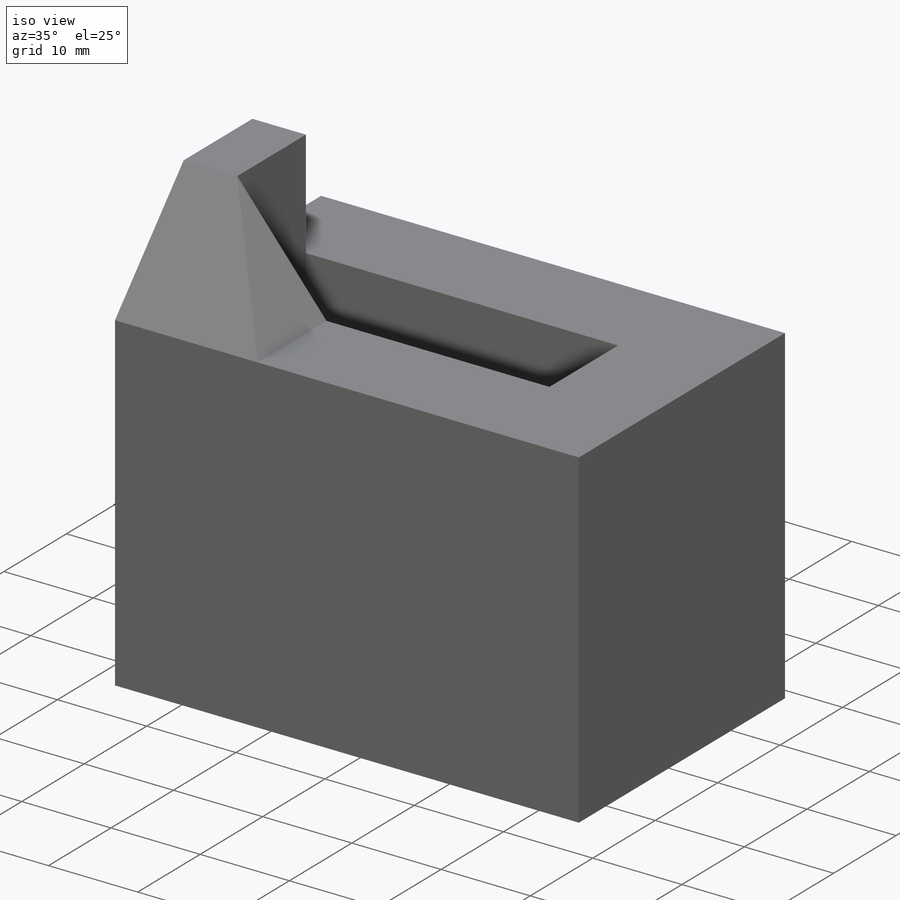
[diagram: iso view]
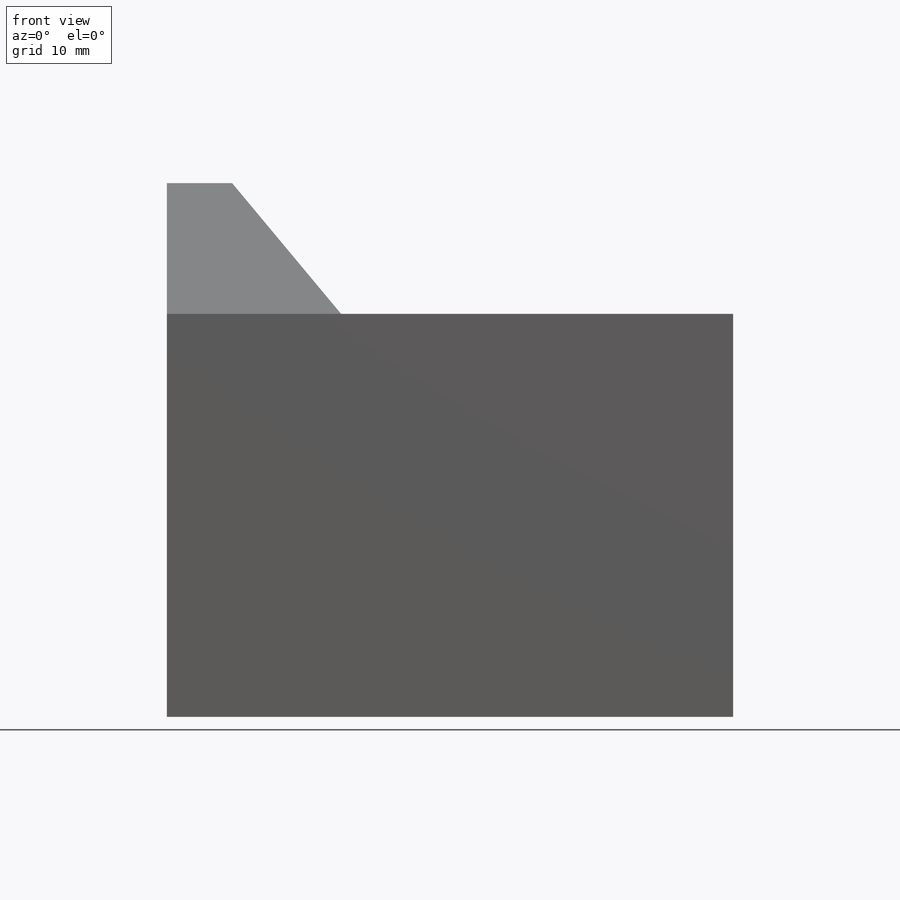
[diagram: front view]
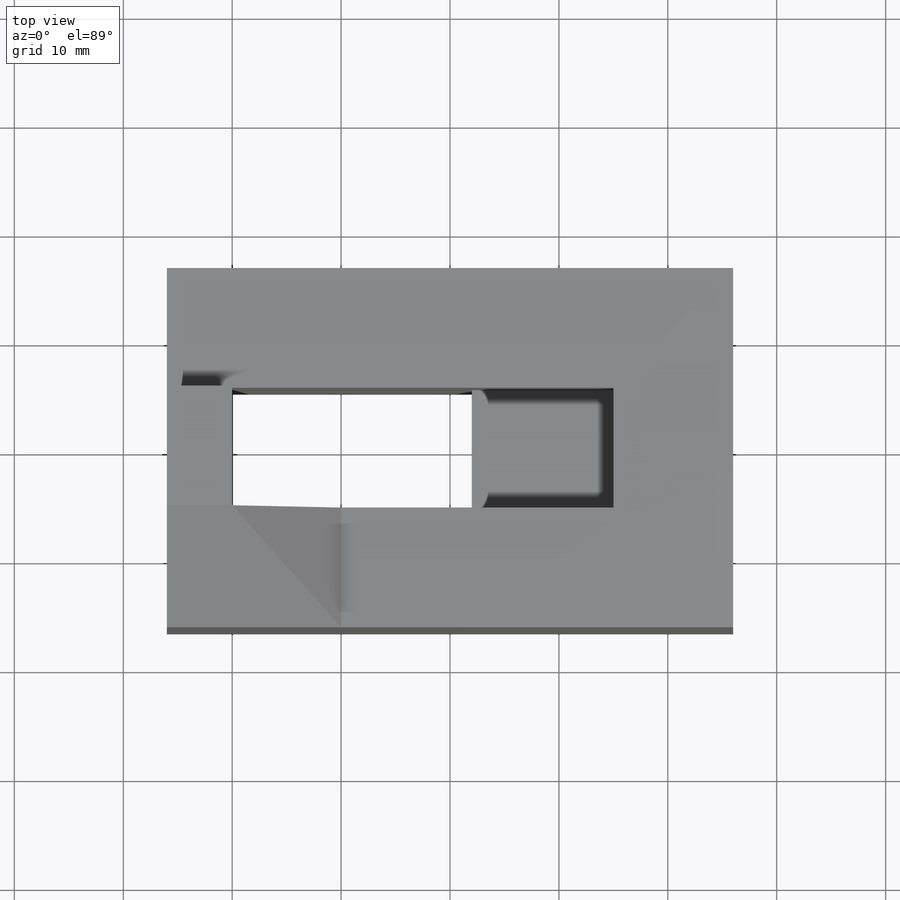
[diagram: top view]
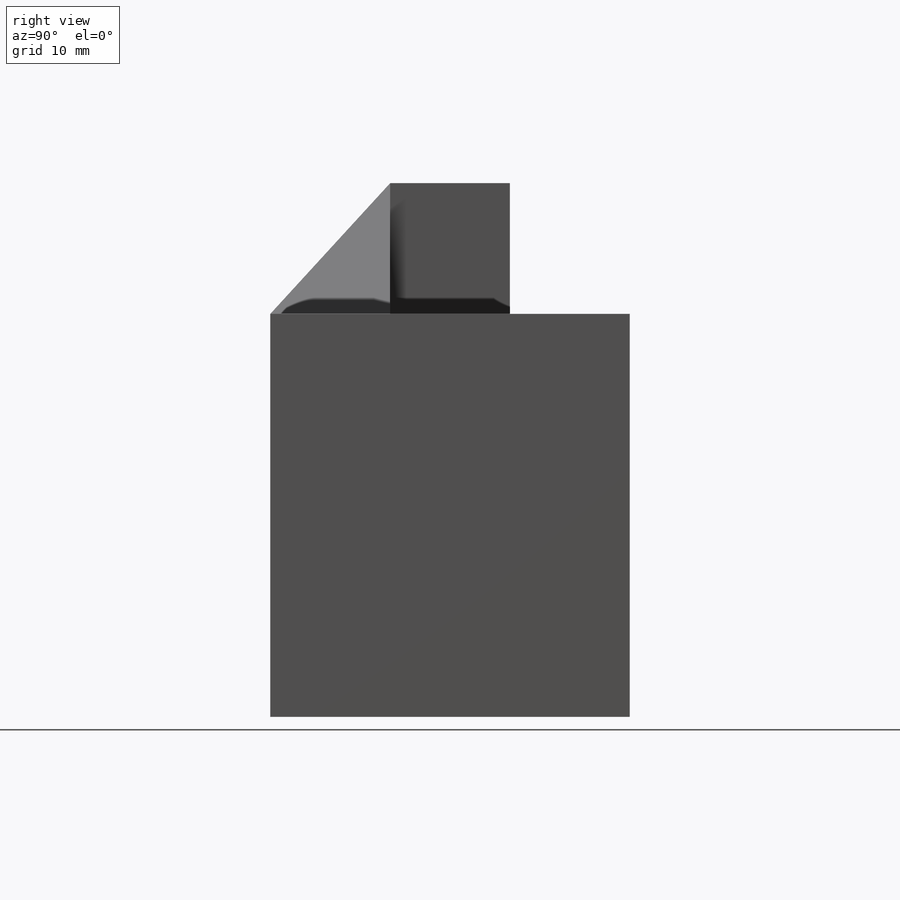
[diagram: right view]
SOLIDWORKS PART (.sldprt)
format: sldprt  version: not decoded by parser v0  size: 204,288 bytes
history: native  units: mm
features: sketch x6, plane x3, extrude x3, cut_extrude x2, material x1 (+8 scaffold rows collapsed)
feature tree (23):
  scaffold x8  (default folders/planes/origin — collapsed)
  material  "灰铸铁"
  plane  "前视基准面"
  plane  "上视基准面"
  plane  "右视基准面"
  sketch  "草图1"  dims[D1=33.0mm D2=52.0mm D3=6.0mm D4=22.0mm D5=11.0mm D6=22.0mm]
  extrude  "凸台-拉伸1"  Depth=37mm
  sketch  "草图3"  dims[D1=11.0mm D2=13.0mm]
  cut_extrude  "切除-拉伸1"  Depth=13mm
  sketch  "草图4"  dims[D1=11.0mm]
  extrude  "凸台-拉伸2"  Depth=12mm
  sketch  "草图5"  dims[D1=16.0mm]
  sketch  "草图6"
  extrude  "凸台-拉伸4"  [1 undecoded]
  sketch  "草图7"
  cut_extrude  "切除-拉伸2"  [1 undecoded]
decode coverage: 7 of 11 modeling features carry decoded parameters
note: 2 parameter values undecoded
note: suppression state not decoded; provenance and decode notes live in map.json
